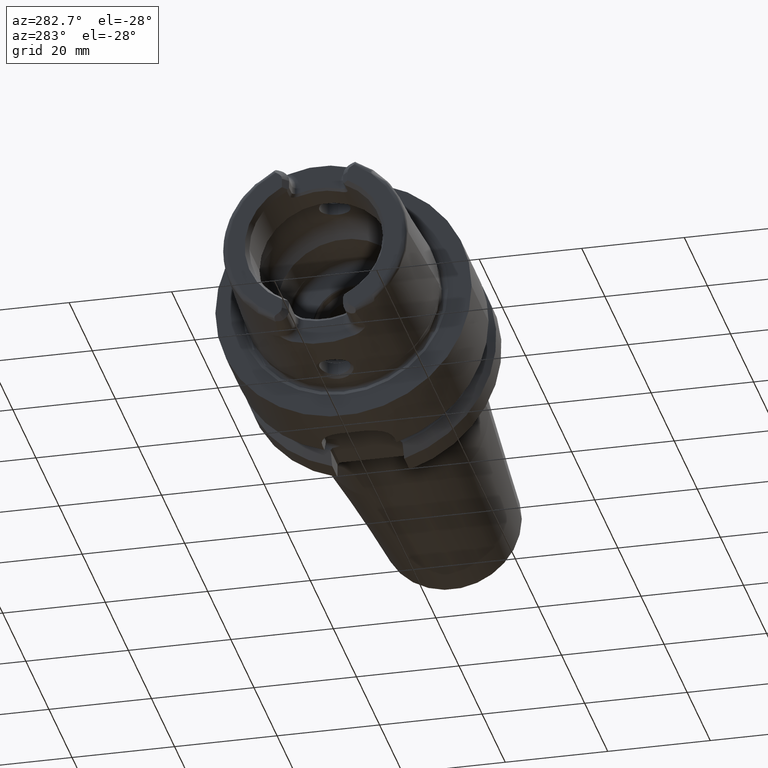
[diagram: clean part render]
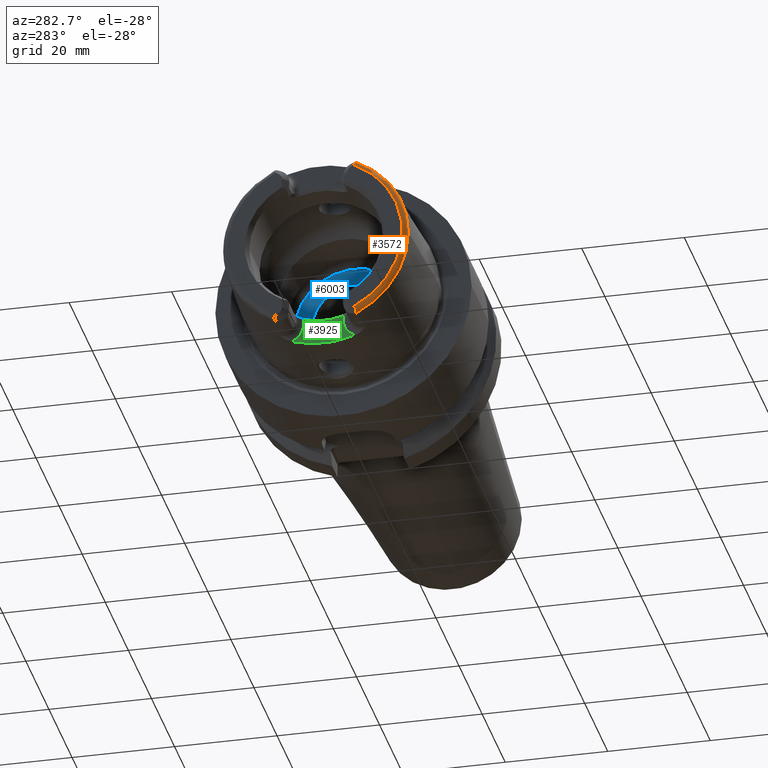
[diagram: same view with three faces highlighted in distinct colors, each labeled with its STEP entity id]
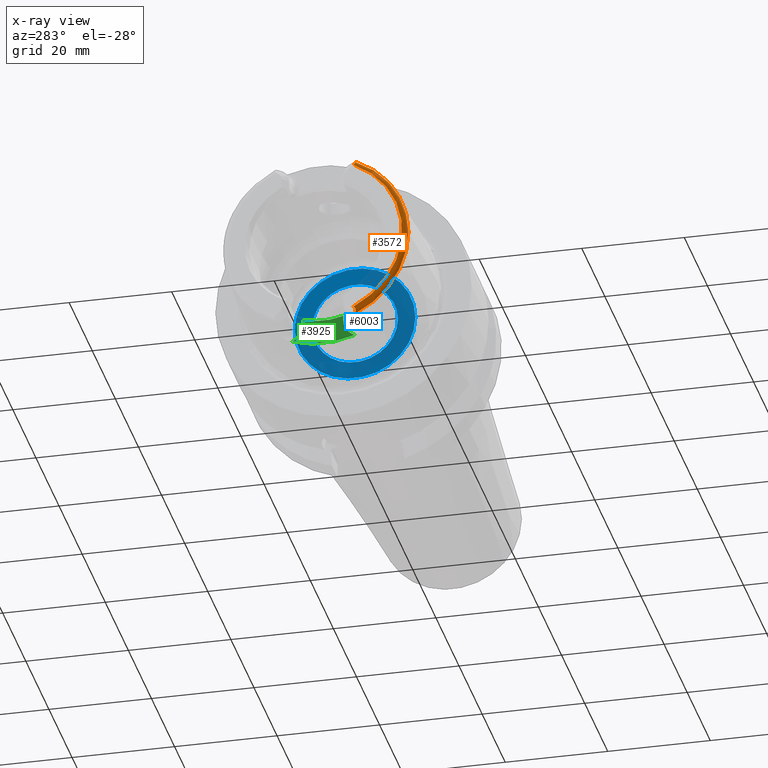
[diagram: x-ray of the same camera — body ghosted, the three highlighted faces saturated]
A machine part, auxiliary view with three faces highlighted in distinct colors.
The next image is the same camera in x-ray (body ghosted, the three faces saturated) — at least one of them is partly hidden behind the body in this view.
Their STEP definitions:

[orange] entity #3572 — the highlighted toroidal blend (fillet) surface has major radius 17.0564 mm and minor (blend) radius 1 mm.
#349=CARTESIAN_POINT('',(-2.49E1,-7.544783891853E0,-1.529691173314E1));
#350=CARTESIAN_POINT('',(-2.49E1,-7.573571818077E0,-1.531653769016E1));
#351=CARTESIAN_POINT('',(-2.489728155480E1,-7.629153987391E0,
-1.535772050003E1));
#352=CARTESIAN_POINT('',(-2.488369366620E1,-7.707011470286E0,
-1.542724439023E1));
#353=CARTESIAN_POINT('',(-2.485976181664E1,-7.775213915386E0,
-1.550270509867E1));
#354=CARTESIAN_POINT('',(-2.482554894287E1,-7.831351740784E0,
-1.558238373959E1));
#355=CARTESIAN_POINT('',(-2.478051603101E1,-7.874904688229E0,
-1.566657798747E1));
#356=CARTESIAN_POINT('',(-2.472245852842E1,-7.904950492844E0,
-1.575732721672E1));
#357=CARTESIAN_POINT('',(-2.465012294207E1,-7.918165671235E0,
-1.585388274214E1));
#358=CARTESIAN_POINT('',(-2.456348848049E1,-7.911565558215E0,
-1.595423495364E1));
#359=CARTESIAN_POINT('',(-2.445933901158E1,-7.881065558196E0,
-1.605949162240E1));
#360=CARTESIAN_POINT('',(-2.434031300018E1,-7.823250379899E0,
-1.616413112254E1));
#361=CARTESIAN_POINT('',(-2.425582567505E1,-7.768067430635E0,
-1.622876371049E1));
#362=CARTESIAN_POINT('',(-2.421192926899E1,-7.735957706029E0,-1.626E1));
#364=CARTESIAN_POINT('',(-2.49E1,0.E0,0.E0));
#365=DIRECTION('',(-1.E0,0.E0,0.E0));
#366=DIRECTION('',(0.E0,-4.423444250631E-1,-8.968452539962E-1));
#367=AXIS2_PLACEMENT_3D('',#364,#365,#366);
#369=CARTESIAN_POINT('',(-2.421192926899E1,-7.735957706029E0,1.626E1));
#370=CARTESIAN_POINT('',(-2.425583231226E1,-7.768072285681E0,1.622875898751E1));
#371=CARTESIAN_POINT('',(-2.434033184818E1,-7.823262199091E0,1.616411636888E1));
#372=CARTESIAN_POINT('',(-2.445937366981E1,-7.881080235028E0,1.605945968213E1));
#373=CARTESIAN_POINT('',(-2.456353415230E1,-7.911575364322E0,1.595418636329E1));
#374=CARTESIAN_POINT('',(-2.465017924519E1,-7.918164814453E0,1.585381401561E1));
#375=CARTESIAN_POINT('',(-2.472252391503E1,-7.904930308012E0,1.575723431988E1));
#376=CARTESIAN_POINT('',(-2.478058070349E1,-7.874859204865E0,1.566646870783E1));
#377=CARTESIAN_POINT('',(-2.482560200513E1,-7.831284304746E0,1.558227354547E1));
#378=CARTESIAN_POINT('',(-2.485979561893E1,-7.775138335981E0,1.550261266279E1));
#379=CARTESIAN_POINT('',(-2.488370779609E1,-7.706948429724E0,1.542718431171E1));
#380=CARTESIAN_POINT('',(-2.489728334263E1,-7.629123221142E0,1.535769736158E1));
#381=CARTESIAN_POINT('',(-2.49E1,-7.573561201560E0,1.531653045242E1));
#382=CARTESIAN_POINT('',(-2.49E1,-7.544783891853E0,1.529691173314E1));
#384=CARTESIAN_POINT('',(-2.395003724237E1,-7.848512546022E0,1.626E1));
#385=CARTESIAN_POINT('',(-2.398205200909E1,-7.844822764222E0,1.626E1));
#386=CARTESIAN_POINT('',(-2.404404093899E1,-7.830728571291E0,1.626E1));
#387=CARTESIAN_POINT('',(-2.413339489162E1,-7.790719671913E0,1.626E1));
#388=CARTESIAN_POINT('',(-2.418634805448E1,-7.755506493033E0,1.626E1));
#389=CARTESIAN_POINT('',(-2.421192926899E1,-7.735957706029E0,1.626E1));
#391=CARTESIAN_POINT('',(-2.395003724237E1,0.E0,0.E0));
#392=DIRECTION('',(1.E0,0.E0,0.E0));
#393=DIRECTION('',(0.E0,-4.346977410045E-1,9.005764120637E-1));
#394=AXIS2_PLACEMENT_3D('',#391,#392,#393);
#396=CARTESIAN_POINT('',(-2.395003724237E1,0.E0,0.E0));
#397=DIRECTION('',(-1.E0,0.E0,0.E0));
#398=DIRECTION('',(0.E0,-4.346977410045E-1,-9.005764120637E-1));
#399=AXIS2_PLACEMENT_3D('',#396,#397,#398);
#401=CARTESIAN_POINT('',(-2.421192926899E1,-7.735957706029E0,-1.626E1));
#402=CARTESIAN_POINT('',(-2.418327713361E1,-7.757853245487E0,-1.626E1));
#403=CARTESIAN_POINT('',(-2.412554393897E1,-7.795219670859E0,-1.626E1));
#404=CARTESIAN_POINT('',(-2.403673963473E1,-7.832849293659E0,-1.626E1));
#405=CARTESIAN_POINT('',(-2.397885131924E1,-7.845191651719E0,-1.626E1));
#406=CARTESIAN_POINT('',(-2.395003724237E1,-7.848512546022E0,-1.626E1));
#2760=CARTESIAN_POINT('',(-2.395003724237E1,-1.805510313416E1,0.E0));
#2761=VERTEX_POINT('',#2760);
#2776=CARTESIAN_POINT('',(-2.395003724237E1,-7.848512546022E0,1.626E1));
#2777=VERTEX_POINT('',#2776);
#2780=CARTESIAN_POINT('',(-2.395003724237E1,-7.848512546022E0,-1.626E1));
#2781=VERTEX_POINT('',#2780);
#2881=CARTESIAN_POINT('',(-2.49E1,-7.544783891853E0,1.529691173314E1));
#2882=VERTEX_POINT('',#2881);
#2883=VERTEX_POINT('',#369);
#2913=CARTESIAN_POINT('',(-2.49E1,-7.544783891853E0,-1.529691173314E1));
#2914=VERTEX_POINT('',#2913);
#2915=VERTEX_POINT('',#362);
#3555=CARTESIAN_POINT('',(-2.39E1,0.E0,0.E0));
#3556=DIRECTION('',(1.E0,0.E0,0.E0));
#3557=DIRECTION('',(0.E0,-1.E0,0.E0));
#3558=AXIS2_PLACEMENT_3D('',#3555,#3556,#3557);
#3559=TOROIDAL_SURFACE('',#3558,1.705635578153E1,1.E0);
#3561=ORIENTED_EDGE('',*,*,#3560,.F.);
#3562=ORIENTED_EDGE('',*,*,#3348,.T.);
#3563=ORIENTED_EDGE('',*,*,#3305,.F.);
#3564=ORIENTED_EDGE('',*,*,#3288,.F.);
#3565=ORIENTED_EDGE('',*,*,#3265,.T.);
#3567=ORIENTED_EDGE('',*,*,#3566,.F.);
#3569=ORIENTED_EDGE('',*,*,#3568,.F.);
#3570=EDGE_LOOP('',(#3561,#3562,#3563,#3564,#3565,#3567,#3569));
#3571=FACE_OUTER_BOUND('',#3570,.F.);
#3572=ADVANCED_FACE('',(#3571),#3559,.T.);
#363=B_SPLINE_CURVE_WITH_KNOTS('',3,(#349,#350,#351,#352,#353,#354,#355,#356,
#357,#358,#359,#360,#361,#362),.UNSPECIFIED.,.F.,.F.,(4,1,1,1,1,1,1,1,1,1,1,4),(
0.E0,9.090909090909E-2,1.818181818182E-1,2.727272727273E-1,3.636363636364E-1,
4.545454545455E-1,5.454545454545E-1,6.363636363636E-1,7.272727272727E-1,
8.181818181818E-1,9.090909090909E-1,1.E0),.UNSPECIFIED.);
#368=CIRCLE('',#367,1.705635578153E1);
#383=B_SPLINE_CURVE_WITH_KNOTS('',3,(#369,#370,#371,#372,#373,#374,#375,#376,
#377,#378,#379,#380,#381,#382),.UNSPECIFIED.,.F.,.F.,(4,1,1,1,1,1,1,1,1,1,1,4),(
0.E0,9.090909090909E-2,1.818181818182E-1,2.727272727273E-1,3.636363636364E-1,
4.545454545455E-1,5.454545454545E-1,6.363636363636E-1,7.272727272727E-1,
8.181818181818E-1,9.090909090909E-1,1.E0),.UNSPECIFIED.);
#390=B_SPLINE_CURVE_WITH_KNOTS('',3,(#384,#385,#386,#387,#388,#389),
.UNSPECIFIED.,.F.,.F.,(4,1,1,4),(0.E0,3.333333333333E-1,6.666666666667E-1,1.E0),
.UNSPECIFIED.);
#395=CIRCLE('',#394,1.805510313416E1);
#400=CIRCLE('',#399,1.805510313416E1);
#407=B_SPLINE_CURVE_WITH_KNOTS('',3,(#401,#402,#403,#404,#405,#406),
.UNSPECIFIED.,.F.,.F.,(4,1,1,4),(0.E0,3.333333333333E-1,6.666666666667E-1,1.E0),
.UNSPECIFIED.);
#3265=EDGE_CURVE('',#2777,#2761,#395,.T.);
#3288=EDGE_CURVE('',#2777,#2883,#390,.T.);
#3305=EDGE_CURVE('',#2883,#2882,#383,.T.);
#3348=EDGE_CURVE('',#2914,#2882,#368,.T.);
#3560=EDGE_CURVE('',#2914,#2915,#363,.T.);
#3566=EDGE_CURVE('',#2781,#2761,#400,.T.);
#3568=EDGE_CURVE('',#2915,#2781,#407,.T.);

[blue] entity #6003 — the highlighted planar face has unit normal (1, 0, 0).
#2328=CARTESIAN_POINT('',(9.95E0,0.E0,0.E0));
#2329=DIRECTION('',(1.E0,0.E0,0.E0));
#2330=DIRECTION('',(0.E0,1.E0,0.E0));
#2331=AXIS2_PLACEMENT_3D('',#2328,#2329,#2330);
#2338=CARTESIAN_POINT('',(9.95E0,0.E0,0.E0));
#2339=DIRECTION('',(-1.E0,0.E0,0.E0));
#2340=DIRECTION('',(0.E0,1.E0,0.E0));
#2341=AXIS2_PLACEMENT_3D('',#2338,#2339,#2340);
#2348=CARTESIAN_POINT('',(9.95E0,0.E0,0.E0));
#2349=DIRECTION('',(1.E0,0.E0,0.E0));
#2350=DIRECTION('',(0.E0,1.E0,0.E0));
#2351=AXIS2_PLACEMENT_3D('',#2348,#2349,#2350);
#2353=CARTESIAN_POINT('',(9.95E0,0.E0,3.398608382830E-14));
#2354=DIRECTION('',(1.E0,0.E0,0.E0));
#2355=DIRECTION('',(0.E0,-1.E0,0.E0));
#2356=AXIS2_PLACEMENT_3D('',#2353,#2354,#2355);
#2766=CARTESIAN_POINT('',(9.95E0,1.1775E1,0.E0));
#2768=VERTEX_POINT('',#2766);
#2770=CARTESIAN_POINT('',(9.95E0,-1.1775E1,0.E0));
#2772=VERTEX_POINT('',#2770);
#3184=CARTESIAN_POINT('',(9.95E0,8.3625E0,0.E0));
#3185=CARTESIAN_POINT('',(9.95E0,-8.3625E0,0.E0));
#3186=VERTEX_POINT('',#3184);
#3187=VERTEX_POINT('',#3185);
#5988=CARTESIAN_POINT('',(9.95E0,0.E0,0.E0));
#5989=DIRECTION('',(1.E0,0.E0,0.E0));
#5990=DIRECTION('',(0.E0,-1.E0,0.E0));
#5991=AXIS2_PLACEMENT_3D('',#5988,#5989,#5990);
#5992=PLANE('',#5991);
#5993=ORIENTED_EDGE('',*,*,#5970,.T.);
#5994=ORIENTED_EDGE('',*,*,#5981,.F.);
#5995=EDGE_LOOP('',(#5993,#5994));
#5996=FACE_OUTER_BOUND('',#5995,.F.);
#5998=ORIENTED_EDGE('',*,*,#5997,.F.);
#6000=ORIENTED_EDGE('',*,*,#5999,.F.);
#6001=EDGE_LOOP('',(#5998,#6000));
#6002=FACE_BOUND('',#6001,.F.);
#6003=ADVANCED_FACE('',(#5996,#6002),#5992,.F.);
#2332=CIRCLE('',#2331,1.1775E1);
#2342=CIRCLE('',#2341,1.1775E1);
#2352=CIRCLE('',#2351,8.3625E0);
#2357=CIRCLE('',#2356,8.3625E0);
#5970=EDGE_CURVE('',#2768,#2772,#2332,.T.);
#5981=EDGE_CURVE('',#2768,#2772,#2342,.T.);
#5997=EDGE_CURVE('',#3186,#3187,#2352,.T.);
#5999=EDGE_CURVE('',#3187,#3186,#2357,.T.);

[green] entity #3925 — the highlighted planar face has unit normal (-1, 0, 0).
#545=CARTESIAN_POINT('',(-1.735E1,0.E0,0.E0));
#546=DIRECTION('',(1.E0,0.E0,0.E0));
#547=DIRECTION('',(0.E0,-3.329198137635E-1,-9.429551408225E-1));
#548=AXIS2_PLACEMENT_3D('',#545,#546,#547);
#639=CARTESIAN_POINT('',(-1.735E1,6.120985459700E0,-1.733695162471E1));
#676=CARTESIAN_POINT('',(-1.735E1,-3.869999999989E0,-1.293259992922E1));
#677=CARTESIAN_POINT('',(-1.735E1,-3.367341739332E0,-1.308906659587E1));
#678=CARTESIAN_POINT('',(-1.735E1,-2.351605461955E0,-1.333894307947E1));
#679=CARTESIAN_POINT('',(-1.735E1,-7.869237642382E-1,-1.352896153447E1));
#680=CARTESIAN_POINT('',(-1.735E1,7.869237642251E-1,-1.352896153447E1));
#681=CARTESIAN_POINT('',(-1.735E1,2.351605461930E0,-1.333894307948E1));
#682=CARTESIAN_POINT('',(-1.735E1,3.367341739323E0,-1.308906659588E1));
#683=CARTESIAN_POINT('',(-1.735E1,3.869999999991E0,-1.293259992922E1));
#685=DIRECTION('',(0.E0,-1.872308843683E-11,-1.E0));
#686=VECTOR('',#685,9.474000707143E-1);
#687=CARTESIAN_POINT('',(-1.735E1,-3.869999999989E0,-1.293259992922E1));
#688=LINE('',#687,#686);
#689=CARTESIAN_POINT('',(-1.735E1,-7.65E0,-1.388E1));
#690=DIRECTION('',(-1.E0,0.E0,0.E0));
#691=DIRECTION('',(0.E0,1.E0,0.E0));
#692=AXIS2_PLACEMENT_3D('',#689,#690,#691);
#694=CARTESIAN_POINT('',(-1.735E1,7.65E0,-1.388E1));
#695=DIRECTION('',(-1.E0,0.E0,0.E0));
#696=DIRECTION('',(0.E0,-4.045012011376E-1,-9.145374668532E-1));
#697=AXIS2_PLACEMENT_3D('',#694,#695,#696);
#699=DIRECTION('',(0.E0,-2.677331803516E-11,1.E0));
#700=VECTOR('',#699,9.474000706860E-1);
#701=CARTESIAN_POINT('',(-1.735E1,3.870000000016E0,-1.387999999991E1));
#702=LINE('',#701,#700);
#765=CARTESIAN_POINT('',(-1.735E1,-6.120985459700E0,-1.733695162471E1));
#2808=VERTEX_POINT('',#765);
#2809=VERTEX_POINT('',#639);
#2813=CARTESIAN_POINT('',(-1.735E1,-3.87E0,-1.388E1));
#2815=VERTEX_POINT('',#2813);
#2817=CARTESIAN_POINT('',(-1.735E1,3.87E0,-1.388E1));
#2819=VERTEX_POINT('',#2817);
#2845=VERTEX_POINT('',#676);
#2846=VERTEX_POINT('',#683);
#3910=CARTESIAN_POINT('',(-1.735E1,0.E0,0.E0));
#3911=DIRECTION('',(-1.E0,0.E0,0.E0));
#3912=DIRECTION('',(0.E0,0.E0,1.E0));
#3913=AXIS2_PLACEMENT_3D('',#3910,#3911,#3912);
#3914=PLANE('',#3913);
#3915=ORIENTED_EDGE('',*,*,#3901,.F.);
#3917=ORIENTED_EDGE('',*,*,#3916,.T.);
#3919=ORIENTED_EDGE('',*,*,#3918,.T.);
#3920=ORIENTED_EDGE('',*,*,#3759,.T.);
#3921=ORIENTED_EDGE('',*,*,#3817,.T.);
#3922=ORIENTED_EDGE('',*,*,#3829,.T.);
#3923=EDGE_LOOP('',(#3915,#3917,#3919,#3920,#3921,#3922));
#3924=FACE_OUTER_BOUND('',#3923,.F.);
#3925=ADVANCED_FACE('',(#3924),#3914,.T.);
#549=CIRCLE('',#548,1.8385765E1);
#684=B_SPLINE_CURVE_WITH_KNOTS('',3,(#676,#677,#678,#679,#680,#681,#682,#683),
.UNSPECIFIED.,.F.,.F.,(4,1,1,1,1,4),(0.E0,2.E-1,4.E-1,6.E-1,8.E-1,1.E0),
.UNSPECIFIED.);
#693=CIRCLE('',#692,3.78E0);
#698=CIRCLE('',#697,3.78E0);
#3759=EDGE_CURVE('',#2808,#2809,#549,.T.);
#3817=EDGE_CURVE('',#2809,#2819,#698,.T.);
#3829=EDGE_CURVE('',#2819,#2846,#702,.T.);
#3901=EDGE_CURVE('',#2845,#2846,#684,.T.);
#3916=EDGE_CURVE('',#2845,#2815,#688,.T.);
#3918=EDGE_CURVE('',#2815,#2808,#693,.T.);